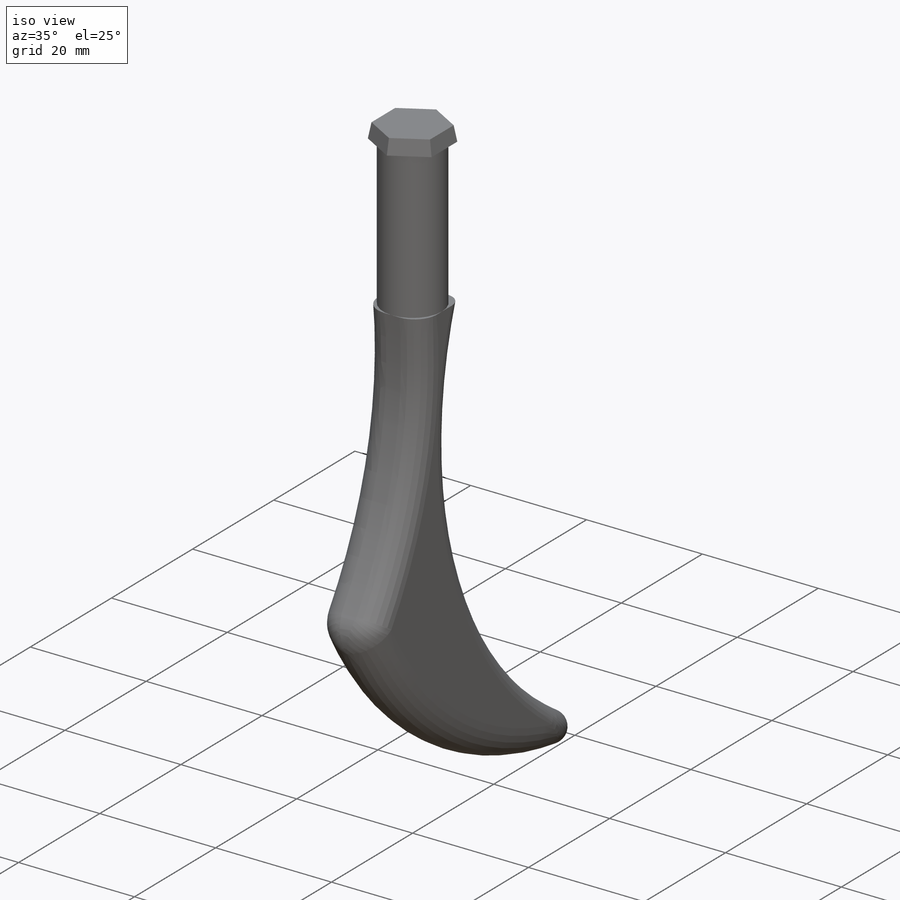
[diagram: iso view]
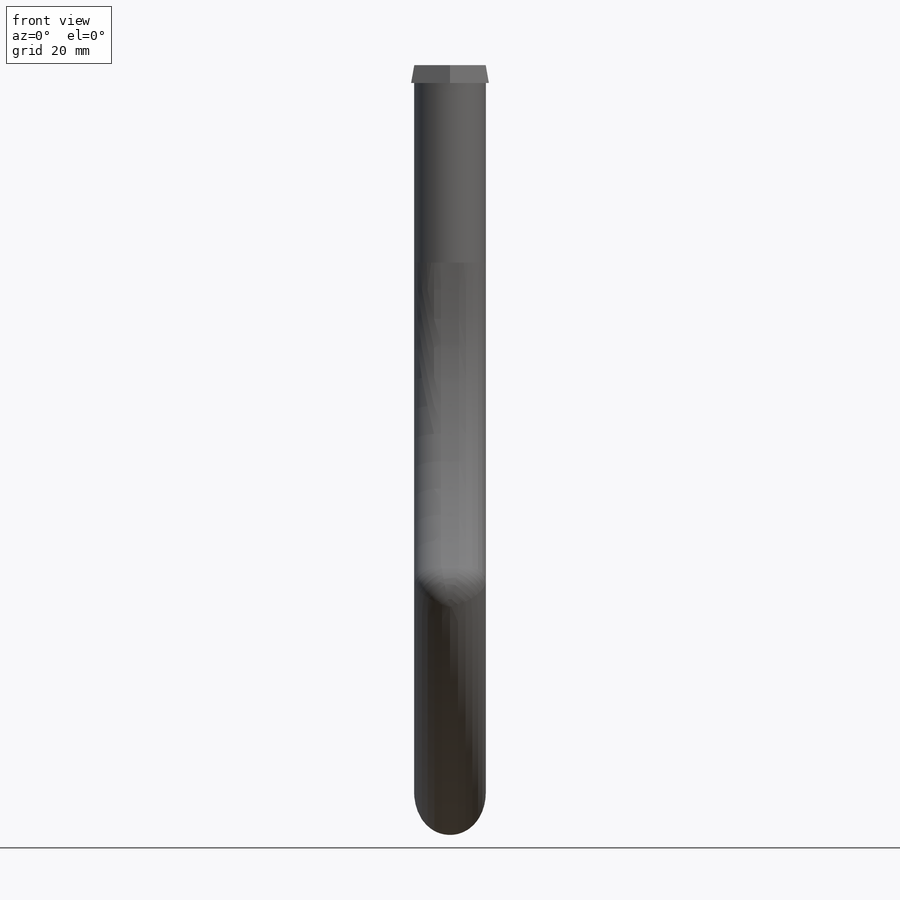
[diagram: front view]
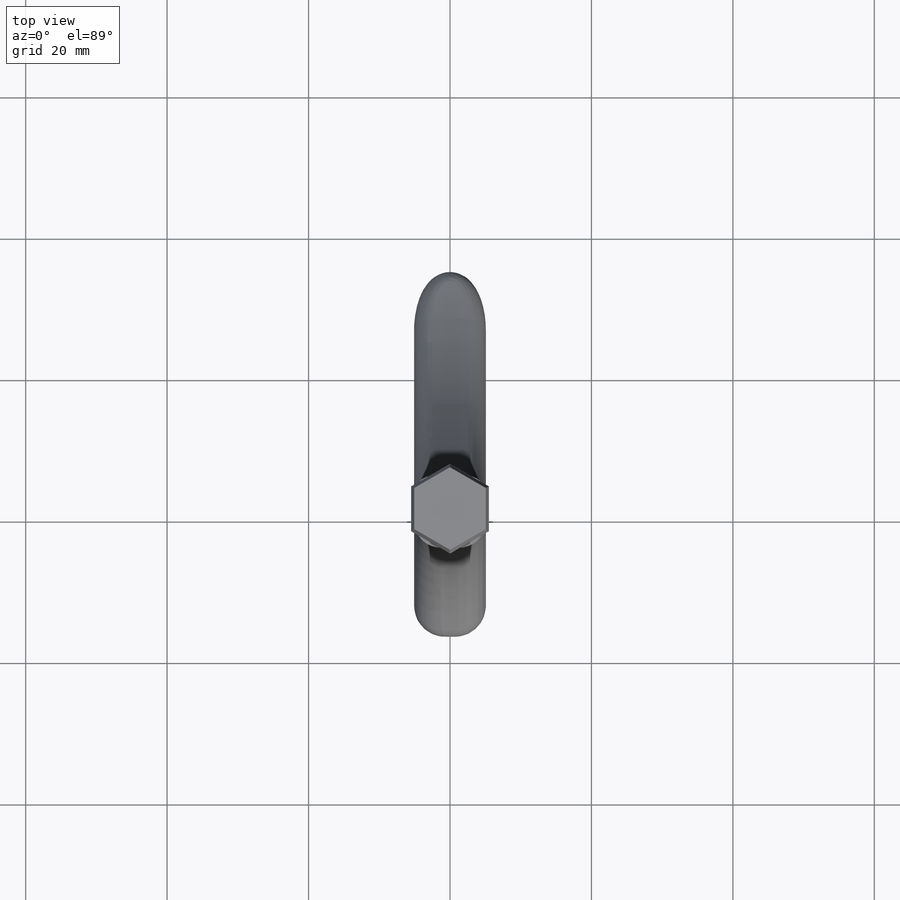
[diagram: top view]
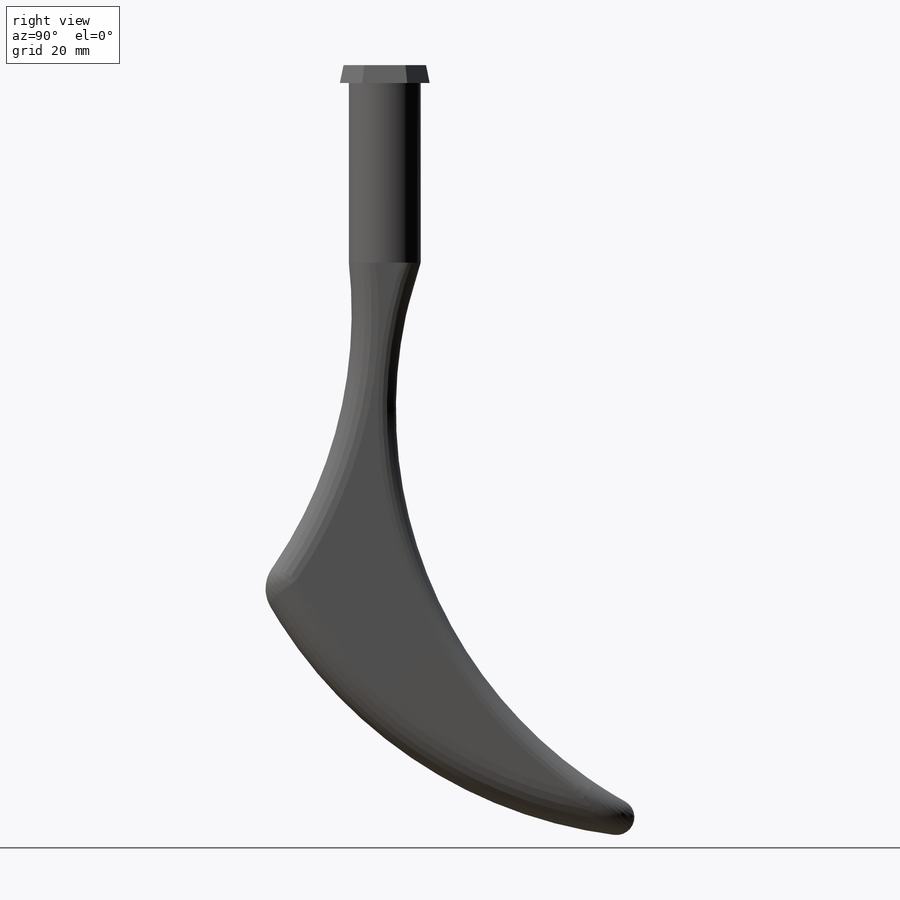
[diagram: right view]
SOLIDWORKS PART (.sldprt)
format: sldprt  version: not decoded by parser v0  size: 266,240 bytes
history: native  units: mm
features: sketch x3, extrude x3, fillet x3, material x1 (+13 scaffold rows collapsed)
feature tree (23):
  scaffold x13  (default folders/planes/origin — collapsed)
  material  "Material <not specified>"
  sketch  "Sketch1"  dims[D1=10.16mm]
  extrude  "Boss-Extrude1"  Depth=25.4mm
  sketch  "Sketch2"  dims[D1=6.35mm]
  extrude  "Boss-Extrude2"  Depth=2.54mm
  sketch  "Sketch3"  dims[c1.D5=66.04mm c1.D6=63.5mm c1.D7=63.5mm c1.D1=38.1mm c1.D2=~40.038343mm c2.D1=45.72mm c2.D2=12.7mm c2.D3=40.64mm c2.D4=81.28mm]
  extrude  "Boss-Extrude3"  Depth=10.16mm
  fillet  "Fillet2"  Radius=3.81mm
  fillet  "Fillet3"  Radius=2.54mm
  fillet  "Fillet4"  Radius=5.08mm
decode coverage: 9 of 9 modeling features carry decoded parameters
note: ~ marks probable driven/reference dimensions
note: suppression state not decoded; provenance and decode notes live in map.json
